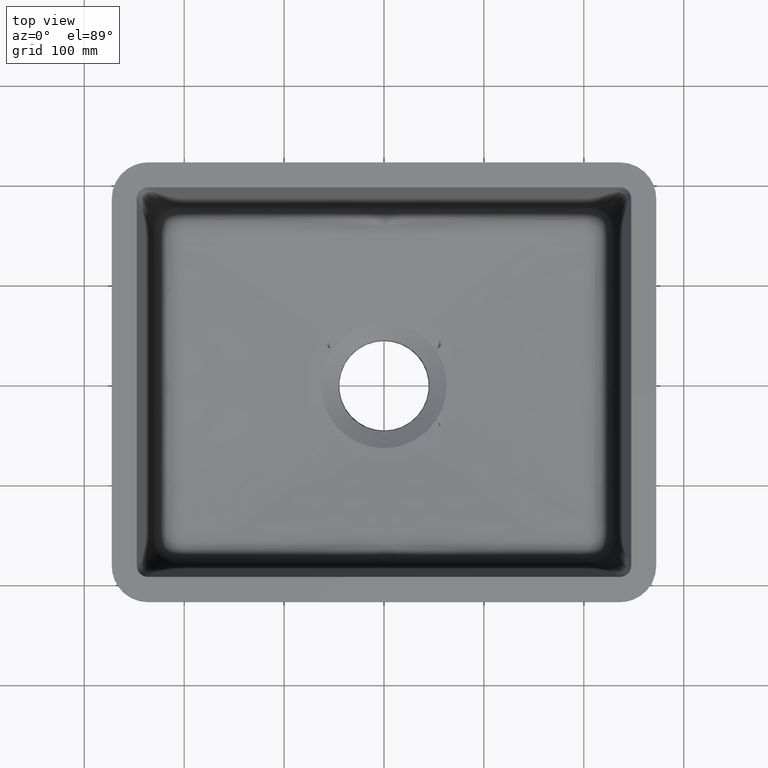
[diagram: clean part render]
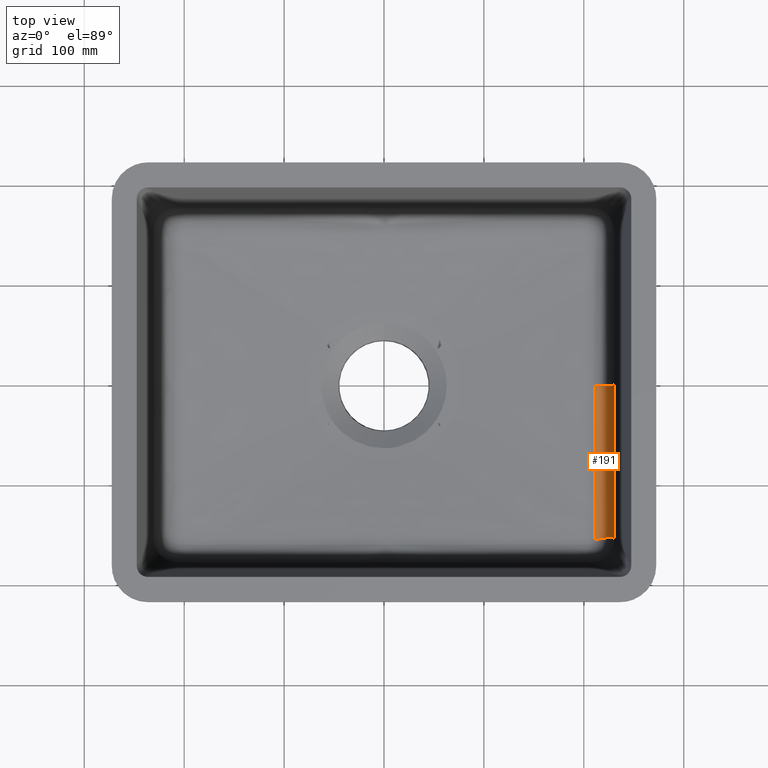
[diagram: same view with one face highlighted and labeled with its STEP entity id]
A machine part, top view. The second image highlights one B-rep face of the part: STEP entity #191.
In plain terms, the highlighted face is a freeform B-spline surface patch.
Its self-contained STEP definition (entity closure, byte-faithful):
#134=B_SPLINE_SURFACE_WITH_KNOTS('',3,3,((#13924,#13925,#13926,#13927,#13928,
#13929,#13930,#13931,#13932,#13933),(#13934,#13935,#13936,#13937,#13938,
#13939,#13940,#13941,#13942,#13943),(#13944,#13945,#13946,#13947,#13948,
#13949,#13950,#13951,#13952,#13953),(#13954,#13955,#13956,#13957,#13958,
#13959,#13960,#13961,#13962,#13963),(#13964,#13965,#13966,#13967,#13968,
#13969,#13970,#13971,#13972,#13973),(#13974,#13975,#13976,#13977,#13978,
#13979,#13980,#13981,#13982,#13983),(#13984,#13985,#13986,#13987,#13988,
#13989,#13990,#13991,#13992,#13993),(#13994,#13995,#13996,#13997,#13998,
#13999,#14000,#14001,#14002,#14003),(#14004,#14005,#14006,#14007,#14008,
#14009,#14010,#14011,#14012,#14013),(#14014,#14015,#14016,#14017,#14018,
#14019,#14020,#14021,#14022,#14023),(#14024,#14025,#14026,#14027,#14028,
#14029,#14030,#14031,#14032,#14033),(#14034,#14035,#14036,#14037,#14038,
#14039,#14040,#14041,#14042,#14043),(#14044,#14045,#14046,#14047,#14048,
#14049,#14050,#14051,#14052,#14053),(#14054,#14055,#14056,#14057,#14058,
#14059,#14060,#14061,#14062,#14063)),.UNSPECIFIED.,.F.,.F.,.F.,(4,1,1,1,
1,1,1,1,1,1,1,4),(4,1,1,1,1,1,1,4),(0.,0.25,0.5,0.5625,0.625,0.6875,0.75,
0.8125,0.875,0.90625,0.9375,1.),(0.,0.125,0.25,0.5,0.625,0.75,0.875,1.),
 .UNSPECIFIED.);
#191=ADVANCED_FACE('',(#262),#134,.F.);
#262=FACE_OUTER_BOUND('',#332,.T.);
#332=EDGE_LOOP('',(#511,#512,#513,#514,#515,#516));
#511=ORIENTED_EDGE('',*,*,#958,.F.);
#512=ORIENTED_EDGE('',*,*,#957,.T.);
#513=ORIENTED_EDGE('',*,*,#916,.T.);
#514=ORIENTED_EDGE('',*,*,#919,.T.);
#515=ORIENTED_EDGE('',*,*,#921,.T.);
#516=ORIENTED_EDGE('',*,*,#959,.F.);
#792=VERTEX_POINT('',#1882);
#793=VERTEX_POINT('',#1950);
#795=VERTEX_POINT('',#2090);
#796=VERTEX_POINT('',#2202);
#820=VERTEX_POINT('',#13736);
#821=VERTEX_POINT('',#13912);
#916=EDGE_CURVE('',#792,#793,#1094,.T.);
#919=EDGE_CURVE('',#793,#795,#1097,.T.);
#921=EDGE_CURVE('',#795,#796,#1099,.T.);
#957=EDGE_CURVE('',#820,#792,#1134,.T.);
#958=EDGE_CURVE('',#820,#821,#1135,.T.);
#959=EDGE_CURVE('',#821,#796,#1136,.T.);
#1094=B_SPLINE_CURVE_WITH_KNOTS('',3,(#1951,#1952,#1953,#1954),
 .UNSPECIFIED.,.F.,.F.,(4,4),(0.,1.),.UNSPECIFIED.);
#1097=B_SPLINE_CURVE_WITH_KNOTS('',3,(#2091,#2092,#2093,#2094),
 .UNSPECIFIED.,.F.,.F.,(4,4),(0.,1.),.UNSPECIFIED.);
#1099=B_SPLINE_CURVE_WITH_KNOTS('',3,(#2204,#2205,#2206,#2207),
 .UNSPECIFIED.,.F.,.F.,(4,4),(0.,1.),.UNSPECIFIED.);
#1134=B_SPLINE_CURVE_WITH_KNOTS('',3,(#13748,#13749,#13750,#13751,#13752,
#13753,#13754,#13755,#13756,#13757),.UNSPECIFIED.,.F.,.F.,(4,1,1,1,1,1,
1,4),(0.,0.125,0.25,0.5,0.625,0.75,0.875,1.),.UNSPECIFIED.);
#1135=B_SPLINE_CURVE_WITH_KNOTS('',3,(#13898,#13899,#13900,#13901,#13902,
#13903,#13904,#13905,#13906,#13907,#13908,#13909,#13910,#13911),
 .UNSPECIFIED.,.F.,.F.,(4,1,1,1,1,1,1,1,1,1,1,4),(0.,0.25,0.5,0.5625,0.625,
0.6875,0.75,0.8125,0.875,0.90625,0.9375,1.),.UNSPECIFIED.);
#1136=B_SPLINE_CURVE_WITH_KNOTS('',3,(#13913,#13914,#13915,#13916,#13917,
#13918,#13919,#13920,#13921,#13922,#13923),.UNSPECIFIED.,.F.,.F.,(4,1,1,
1,1,1,1,1,4),(0.,0.125,0.25,0.375,0.5,0.625,0.75,0.875,1.),
 .UNSPECIFIED.);
#1882=CARTESIAN_POINT('',(211.317966242856,-1.3665170057832E-5,-184.225271679455));
#1950=CARTESIAN_POINT('',(211.317997027342,-101.915897865153,-184.174955355603));
#1951=CARTESIAN_POINT('',(211.317966242321,9.17361093630645E-13,-184.225271681099));
#1952=CARTESIAN_POINT('',(211.318196245602,-33.9719149916102,-184.225258082695));
#1953=CARTESIAN_POINT('',(211.31800606746,-67.9438875932656,-184.233031576423));
#1954=CARTESIAN_POINT('',(211.318030870403,-101.915737068558,-184.175541746338));
#2090=CARTESIAN_POINT('',(211.317979507767,-138.226189052092,-183.412252315662));
#2091=CARTESIAN_POINT('',(211.318029680537,-101.916061667627,-184.175541263196));
#2092=CARTESIAN_POINT('',(211.318048611457,-114.022898939814,-184.155050179152));
#2093=CARTESIAN_POINT('',(211.318345383733,-126.129929727785,-183.918184864332));
#2094=CARTESIAN_POINT('',(211.318016847142,-138.226191616746,-183.412414050082));
#2202=CARTESIAN_POINT('',(211.31796567987,-154.491870848622,-182.528246413689));
#2204=CARTESIAN_POINT('',(211.317975205597,-138.226191670457,-183.412415351616));
#2205=CARTESIAN_POINT('',(211.31779560274,-143.651430494119,-183.185575271885));
#2206=CARTESIAN_POINT('',(211.318029573948,-149.072683979766,-182.870624797957));
#2207=CARTESIAN_POINT('',(211.317965679576,-154.491870884314,-182.52824641144));
#13736=CARTESIAN_POINT('',(230.884217562772,9.473903143468E-15,-164.708937441336));
#13748=CARTESIAN_POINT('',(230.884217562772,2.8421709430404E-14,-164.708937441336));
#13749=CARTESIAN_POINT('',(230.758454396216,2.84952439604452E-14,-165.955602629149));
#13750=CARTESIAN_POINT('',(230.300389192781,2.1730828700736E-6,-168.428327662098));
#13751=CARTESIAN_POINT('',(228.584429714561,1.18565504365221E-5,-173.155136387743));
#13752=CARTESIAN_POINT('',(225.708216244221,2.45134266042581E-5,-177.349653148686));
#13753=CARTESIAN_POINT('',(221.879262399003,2.74756640558404E-5,-180.616817308877));
#13754=CARTESIAN_POINT('',(218.617227664891,2.1695665915476E-5,-182.5137215946));
#13755=CARTESIAN_POINT('',(215.056985430467,4.90506727522978E-6,-183.771897130407));
#13756=CARTESIAN_POINT('',(212.568778814631,-1.50263750682881E-5,-184.151389894259));
#13757=CARTESIAN_POINT('',(211.317966242154,-2.73303400870075E-5,-184.225271681109));
#13898=CARTESIAN_POINT('',(230.884217562772,-2.8421709430404E-14,-164.708937441336));
#13899=CARTESIAN_POINT('',(230.884217562772,-12.8099741246758,-164.708937441336));
#13900=CARTESIAN_POINT('',(230.884217562772,-38.4299223740267,-164.708937441336));
#13901=CARTESIAN_POINT('',(230.884217562772,-67.2523641545471,-164.708937441336));
#13902=CARTESIAN_POINT('',(230.884217562772,-86.4673253415616,-164.708937441336));
#13903=CARTESIAN_POINT('',(230.884217562772,-96.074805935069,-164.708937441336));
#13904=CARTESIAN_POINT('',(230.884217562772,-105.682286528576,-164.708937441336));
#13905=CARTESIAN_POINT('',(230.884217562772,-115.289767122083,-164.708937441336));
#13906=CARTESIAN_POINT('',(230.884217562772,-124.89724771559,-164.708937441336));
#13907=CARTESIAN_POINT('',(230.884217562772,-132.903481543513,-164.708937441336));
#13908=CARTESIAN_POINT('',(230.884217562772,-139.30846860585,-164.708937441336));
#13909=CARTESIAN_POINT('',(230.884217562772,-145.713455668188,-164.708937441336));
#13910=CARTESIAN_POINT('',(230.884217562772,-150.51719596494,-164.708937441336));
#13911=CARTESIAN_POINT('',(230.884217562772,-153.719689496109,-164.708937441336));
#13912=CARTESIAN_POINT('',(230.884217562772,-153.719689496109,-164.708937441336));
#13913=CARTESIAN_POINT('',(230.884217562772,-153.719689496105,-164.708937441336));
#13914=CARTESIAN_POINT('',(230.764230006833,-153.503002641477,-165.898350152988));
#13915=CARTESIAN_POINT('',(230.302306058131,-153.122388642628,-168.264665466287));
#13916=CARTESIAN_POINT('',(228.954095744653,-152.733907875674,-171.647137451818));
#13917=CARTESIAN_POINT('',(226.99799889129,-152.543218845877,-174.735385937643));
#13918=CARTESIAN_POINT('',(224.51917902973,-152.551394909249,-177.430219603546));
#13919=CARTESIAN_POINT('',(221.601559970834,-152.760076641061,-179.631047831307));
#13920=CARTESIAN_POINT('',(218.352714819241,-153.15882902224,-181.270096273791));
#13921=CARTESIAN_POINT('',(214.882339461542,-153.736016997995,-182.283102654105));
#13922=CARTESIAN_POINT('',(212.503320959186,-154.225582193894,-182.519527251153));
#13923=CARTESIAN_POINT('',(211.317965680366,-154.491870812884,-182.528246415936));
#13924=CARTESIAN_POINT('',(230.884217562772,-2.8421709430404E-14,-164.708937441336));
#13925=CARTESIAN_POINT('',(230.758454396216,-2.84952439604452E-14,-165.955602629149));
#13926=CARTESIAN_POINT('',(230.300389192781,-2.1730828700736E-6,-168.428327662098));
#13927=CARTESIAN_POINT('',(228.584429714561,-1.18565504365221E-5,-173.155136387743));
#13928=CARTESIAN_POINT('',(225.708216244221,-2.45134266042581E-5,-177.349653148686));
#13929=CARTESIAN_POINT('',(221.879262399003,-2.74756640558404E-5,-180.616817308877));
#13930=CARTESIAN_POINT('',(218.617227664891,-2.1695665915476E-5,-182.5137215946));
#13931=CARTESIAN_POINT('',(215.056985430467,-4.90506727522978E-6,-183.771897130407));
#13932=CARTESIAN_POINT('',(212.568778814631,1.50263750682881E-5,-184.151389894259));
#13933=CARTESIAN_POINT('',(211.317966242154,2.73303400870075E-5,-184.225271681109));
#13934=CARTESIAN_POINT('',(230.884217562772,-12.8099741246758,-164.708937441336));
#13935=CARTESIAN_POINT('',(230.758347194402,-12.7920372877116,-165.956665299348));
#13936=CARTESIAN_POINT('',(230.299633356934,-12.7605618094896,-168.432074468095));
#13937=CARTESIAN_POINT('',(228.57998063671,-12.7178887964581,-173.165300882831));
#13938=CARTESIAN_POINT('',(225.695962051812,-12.7081872121785,-177.36459858077));
#13939=CARTESIAN_POINT('',(221.860954750279,-12.7318171851516,-180.629862934865));
#13940=CARTESIAN_POINT('',(218.597959712773,-12.7654339009858,-182.522384274053));
#13941=CARTESIAN_POINT('',(215.04303175056,-12.813871798117,-183.774736908852));
#13942=CARTESIAN_POINT('',(212.563446859187,-12.8548918675026,-184.151705648745));
#13943=CARTESIAN_POINT('',(211.318044989602,-12.8771921318699,-184.225267029731));
#13944=CARTESIAN_POINT('',(230.884217562772,-38.4299223740267,-164.708937441336));
#13945=CARTESIAN_POINT('',(230.758161124632,-38.3761118324838,-165.958509771866));
#13946=CARTESIAN_POINT('',(230.297919536027,-38.2816811710532,-168.438907834741));
#13947=CARTESIAN_POINT('',(228.568972287693,-38.153643691042,-173.183838079306));
#13948=CARTESIAN_POINT('',(225.667698442561,-38.1245136990473,-177.390233525365));
#13949=CARTESIAN_POINT('',(221.821419277099,-38.1953978140222,-180.6498632135));
#13950=CARTESIAN_POINT('',(218.55775871283,-38.2962598366987,-182.532985466026));
#13951=CARTESIAN_POINT('',(215.014727356752,-38.4416069438326,-183.773945625148));
#13952=CARTESIAN_POINT('',(212.552638290583,-38.564705790124,-184.145829648557));
#13953=CARTESIAN_POINT('',(211.318046810234,-38.6316303598574,-184.21841240496));
#13954=CARTESIAN_POINT('',(230.884217562772,-67.2523641545471,-164.708937441336));
#13955=CARTESIAN_POINT('',(230.757987465173,-67.15819573267,-165.960231223457));
#13956=CARTESIAN_POINT('',(230.295471311926,-66.9929405817355,-168.44594643419));
#13957=CARTESIAN_POINT('',(228.551762062038,-66.7688689146864,-173.202619295723));
#13958=CARTESIAN_POINT('',(225.627434602868,-66.7178805508631,-177.412584171788));
#13959=CARTESIAN_POINT('',(221.770444748095,-66.8419259319074,-180.662879670413));
#13960=CARTESIAN_POINT('',(218.50893333002,-67.0184410313014,-182.534855487346));
#13961=CARTESIAN_POINT('',(214.982207936758,-67.2728138587758,-183.764422774969));
#13962=CARTESIAN_POINT('',(212.540405586203,-67.488252283954,-184.131073742197));
#13963=CARTESIAN_POINT('',(211.317964823418,-67.6053796545681,-184.202080418546));
#13964=CARTESIAN_POINT('',(230.884217562772,-86.4673253415616,-164.708937441336));
#13965=CARTESIAN_POINT('',(230.757896556159,-86.3462503116927,-165.961132386378));
#13966=CARTESIAN_POINT('',(230.293652618357,-86.1337765356627,-168.45013077318));
#13967=CARTESIAN_POINT('',(228.538346624486,-85.8456787885159,-173.213910822053));
#13968=CARTESIAN_POINT('',(225.597164974136,-85.7801146391792,-177.42437679011));
#13969=CARTESIAN_POINT('',(221.733873652175,-85.9395970241196,-180.666982340356));
#13970=CARTESIAN_POINT('',(218.475007080957,-86.1665444420912,-182.530966703199));
#13971=CARTESIAN_POINT('',(214.960363755414,-86.4935969463851,-183.752984982413));
#13972=CARTESIAN_POINT('',(212.532324897354,-86.7705907255537,-184.11579072021));
#13973=CARTESIAN_POINT('',(211.317971296134,-86.9211840642637,-184.185208975862));
#13974=CARTESIAN_POINT('',(230.884217562772,-96.074805935069,-164.708937441336));
#13975=CARTESIAN_POINT('',(230.757846616759,-95.9402780555382,-165.961627425693));
#13976=CARTESIAN_POINT('',(230.292665684562,-95.7041945232547,-168.452128051097));
#13977=CARTESIAN_POINT('',(228.531122112842,-95.3840795255491,-173.218457372583));
#13978=CARTESIAN_POINT('',(225.581120201797,-95.3112210749798,-177.427527280939));
#13979=CARTESIAN_POINT('',(221.714805197077,-95.4884198028896,-180.665549093529));
#13980=CARTESIAN_POINT('',(218.457516455472,-95.7405854933065,-182.525813512362));
#13981=CARTESIAN_POINT('',(214.949228842107,-96.1039851190936,-183.745485397282));
#13982=CARTESIAN_POINT('',(212.528217966581,-96.41176577492,-184.108136508343));
#13983=CARTESIAN_POINT('',(211.31796968435,-96.579098056403,-184.177847522599));
#13984=CARTESIAN_POINT('',(230.884217562772,-105.682286528576,-164.708937441336));
#13985=CARTESIAN_POINT('',(230.757761225202,-105.5343083729,-165.962473895159));
#13986=CARTESIAN_POINT('',(230.291616843085,-105.274626048861,-168.456518155046));
#13987=CARTESIAN_POINT('',(228.523772808378,-104.922530341042,-173.232672031423));
#13988=CARTESIAN_POINT('',(225.565131388176,-104.842422716336,-177.44933241156));
#13989=CARTESIAN_POINT('',(221.696237373338,-105.037365714008,-180.687971123612));
#13990=CARTESIAN_POINT('',(218.440778463775,-105.314755570853,-182.545137246));
#13991=CARTESIAN_POINT('',(214.938802744347,-105.714486539936,-183.758366207546));
#13992=CARTESIAN_POINT('',(212.524414712943,-106.053024630755,-184.113859373101));
#13993=CARTESIAN_POINT('',(211.317960794193,-106.237075333186,-184.178998771749));
#13994=CARTESIAN_POINT('',(230.884217562772,-115.289767122083,-164.708937441336));
#13995=CARTESIAN_POINT('',(230.758129632422,-115.1283188749,-165.958821947863));
#13996=CARTESIAN_POINT('',(230.291674576781,-114.845054254128,-168.448142062625));
#13997=CARTESIAN_POINT('',(228.517895079903,-114.46115112476,-173.219236017635));
#13998=CARTESIAN_POINT('',(225.550226673998,-114.374051412652,-177.429346309758));
#13999=CARTESIAN_POINT('',(221.678433485162,-114.586827139875,-180.652397691561));
#14000=CARTESIAN_POINT('',(218.424584354859,-114.889360084011,-182.492567016472));
#14001=CARTESIAN_POINT('',(214.928706104501,-115.325130612667,-183.682942267794));
#14002=CARTESIAN_POINT('',(212.520756257709,-115.6940488985,-184.017983517312));
#14003=CARTESIAN_POINT('',(211.318012853281,-115.894573208982,-184.071133378497));
#14004=CARTESIAN_POINT('',(230.884217562772,-124.89724771559,-164.708937441336));
#14005=CARTESIAN_POINT('',(230.758926449357,-124.722254726487,-165.950923260511));
#14006=CARTESIAN_POINT('',(230.292655179813,-124.415265807643,-168.425600828572));
#14007=CARTESIAN_POINT('',(228.512729307301,-123.999289467755,-173.168065153533));
#14008=CARTESIAN_POINT('',(225.534937914622,-123.904942380568,-177.345571452247));
#14009=CARTESIAN_POINT('',(221.65959687481,-124.13527328651,-180.531385554442));
#14010=CARTESIAN_POINT('',(218.407209247295,-124.462721827903,-182.342233038864));
#14011=CARTESIAN_POINT('',(214.917732134,-124.934276733748,-183.502998933664));
#14012=CARTESIAN_POINT('',(212.516764188862,-125.333380993775,-183.817734801856));
#14013=CARTESIAN_POINT('',(211.318128742438,-125.550274416086,-183.860352381693));
#14014=CARTESIAN_POINT('',(230.884217562772,-132.903481543513,-164.708937441336));
#14015=CARTESIAN_POINT('',(230.759944082183,-132.717107373634,-165.940835669264));
#14016=CARTESIAN_POINT('',(230.294264831294,-132.390130116479,-168.395493399258));
#14017=CARTESIAN_POINT('',(228.509177274014,-131.946914148807,-173.096304281039));
#14018=CARTESIAN_POINT('',(225.522218510105,-131.84596981611,-177.227344773625));
#14019=CARTESIAN_POINT('',(221.643452051382,-132.090462875578,-180.365358968239));
#14020=CARTESIAN_POINT('',(218.392118539435,-132.43840344624,-182.141455616479));
#14021=CARTESIAN_POINT('',(214.908055561817,-132.939621060333,-183.270444364128));
#14022=CARTESIAN_POINT('',(212.513128885107,-133.363873391968,-183.566161828681));
#14023=CARTESIAN_POINT('',(211.318097753921,-133.594434515892,-183.599726495107));
#14024=CARTESIAN_POINT('',(230.884217562772,-139.30846860585,-164.708937441336));
#14025=CARTESIAN_POINT('',(230.76095874314,-139.1129156444,-165.930777537557));
#14026=CARTESIAN_POINT('',(230.296020617036,-138.769815371435,-168.365291593264));
#14027=CARTESIAN_POINT('',(228.506858221878,-138.304581383491,-173.024059407997));
#14028=CARTESIAN_POINT('',(225.512250264601,-138.19815578928,-177.1088054427));
#14029=CARTESIAN_POINT('',(221.63051182915,-138.45372898548,-180.199976426142));
#14030=CARTESIAN_POINT('',(218.379893804272,-138.817835683911,-181.942303414029));
#14031=CARTESIAN_POINT('',(214.900083926041,-139.34249833223,-183.040582401824));
#14032=CARTESIAN_POINT('',(212.509955719036,-139.786629024309,-183.318061757436));
#14033=CARTESIAN_POINT('',(211.317806435373,-140.027988887129,-183.343003432315));
#14034=CARTESIAN_POINT('',(230.884217562772,-145.713455668188,-164.708937441336));
#14035=CARTESIAN_POINT('',(230.762280837622,-145.508583561588,-165.917671878637));
#14036=CARTESIAN_POINT('',(230.298503027951,-145.149007265808,-168.324941367721));
#14037=CARTESIAN_POINT('',(228.50546251794,-144.660868492658,-172.924887220807));
#14038=CARTESIAN_POINT('',(225.502831245767,-144.547966304019,-176.944918597728));
#14039=CARTESIAN_POINT('',(221.617793522174,-144.813841144235,-179.973852860516));
#14040=CARTESIAN_POINT('',(218.367750474958,-145.193719871634,-181.673541534345));
#14041=CARTESIAN_POINT('',(214.892239444621,-145.74170452005,-182.736063899087));
#14042=CARTESIAN_POINT('',(212.507106622974,-146.205866435321,-182.995196210688));
#14043=CARTESIAN_POINT('',(211.317999901124,-146.458173749855,-183.012446972294));
#14044=CARTESIAN_POINT('',(230.884217562772,-150.51719596494,-164.708937441336));
#14045=CARTESIAN_POINT('',(230.763410819948,-150.305257737366,-165.906470589208));
#14046=CARTESIAN_POINT('',(230.30068972803,-149.933112583845,-168.290041325711));
#14047=CARTESIAN_POINT('',(228.504783043043,-149.42722579469,-172.83797308321));
#14048=CARTESIAN_POINT('',(225.495929696155,-149.308809265471,-176.800659229565));
#14049=CARTESIAN_POINT('',(221.608277226166,-149.581928606258,-179.775719469446));
#14050=CARTESIAN_POINT('',(218.358588232956,-149.97342829312,-181.439465166301));
#14051=CARTESIAN_POINT('',(214.886247746119,-150.538915208538,-182.47324563695));
#14052=CARTESIAN_POINT('',(212.504825059463,-151.018297310601,-182.719036322073));
#14053=CARTESIAN_POINT('',(211.317989140469,-151.278971940963,-182.731234213785));
#14054=CARTESIAN_POINT('',(230.884217562772,-153.719689496109,-164.708937441336));
#14055=CARTESIAN_POINT('',(230.764228623942,-153.503000147046,-165.898363861313));
#14056=CARTESIAN_POINT('',(230.302311480504,-153.122375277475,-168.264724724887));
#14057=CARTESIAN_POINT('',(228.504572399992,-152.604406245341,-172.774799726509));
#14058=CARTESIAN_POINT('',(225.491554746009,-152.48203374325,-176.695818484265));
#14059=CARTESIAN_POINT('',(221.602137757199,-152.759762442038,-179.631943333243));
#14060=CARTESIAN_POINT('',(218.352652200103,-153.158896158677,-181.269838110985));
#14061=CARTESIAN_POINT('',(214.882362047068,-153.736012139329,-182.283101738787));
#14062=CARTESIAN_POINT('',(212.50333461028,-154.225579195478,-182.519527146459));
#14063=CARTESIAN_POINT('',(211.317965679576,-154.491870884314,-182.52824641144));